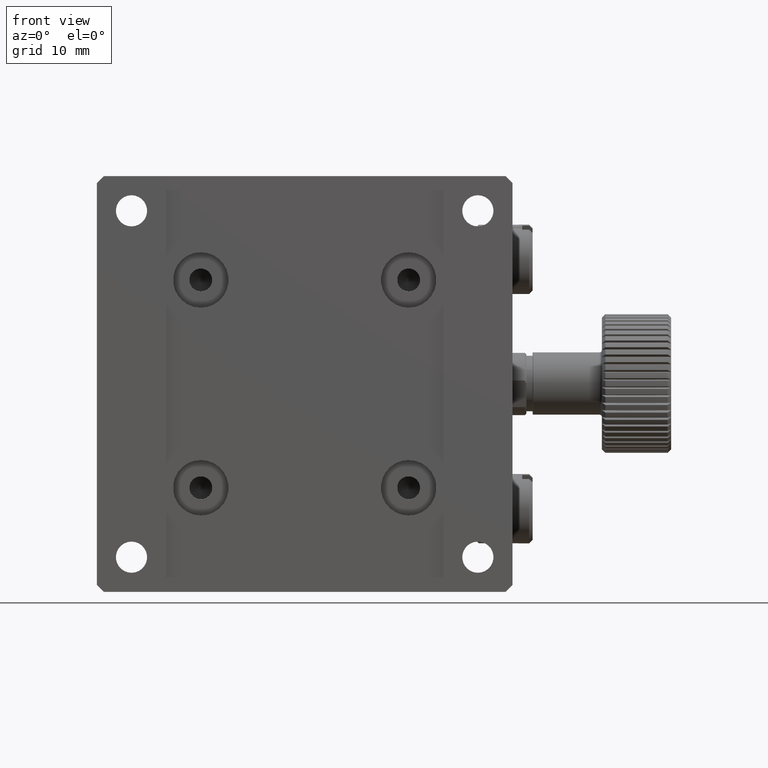
[diagram: clean part render]
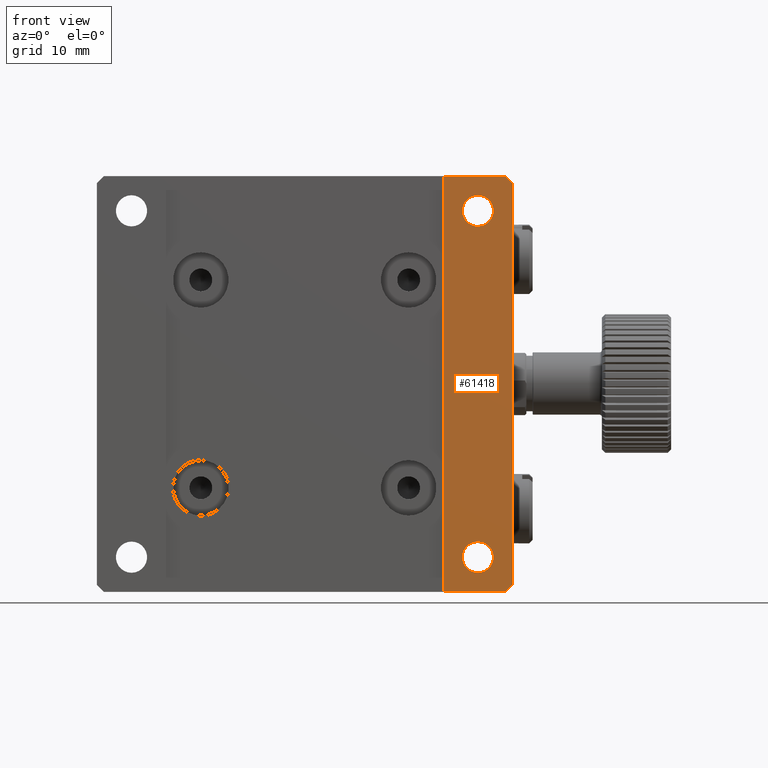
[diagram: same view with one face highlighted and labeled with its STEP entity id]
A machine part, front view. The second image highlights one B-rep face of the part: STEP entity #61418.
In plain terms, the highlighted planar face has unit normal (0, 1, 0).
Its self-contained STEP definition (entity closure, byte-faithful):
#5615 = ORIENTED_EDGE ( 'NONE', *, *, #96563, .T. ) ;
#7165 = DIRECTION ( 'NONE',  ( 1.000000000000000000, 0.000000000000000000, -0.000000000000000000 ) ) ;
#8901 = DIRECTION ( 'NONE',  ( -0.000000000000000000, -1.000000000000000000, -0.000000000000000000 ) ) ;
#11584 = LINE ( 'NONE', #35519, #37038 ) ;
#12710 = VERTEX_POINT ( 'NONE', #62638 ) ;
#13124 = LINE ( 'NONE', #67349, #98227 ) ;
#14609 = VECTOR ( 'NONE', #7165, 1000.000000000000000 ) ;
#15133 = EDGE_LOOP ( 'NONE', ( #73377 ) ) ;
#15480 = ORIENTED_EDGE ( 'NONE', *, *, #78116, .T. ) ;
#18010 = CIRCLE ( 'NONE', #97825, 2.250000000000001776 ) ;
#21343 = DIRECTION ( 'NONE',  ( 0.000000000000000000, 0.000000000000000000, 1.000000000000000000 ) ) ;
#21538 = AXIS2_PLACEMENT_3D ( 'NONE', #107268, #8901, #74648 ) ;
#21895 = ORIENTED_EDGE ( 'NONE', *, *, #64550, .F. ) ;
#23698 = CARTESIAN_POINT ( 'NONE',  ( 60.00000000000000000, 0.000000000000000000, 0.000000000000000000 ) ) ;
#28165 = LINE ( 'NONE', #85238, #55378 ) ;
#30381 = FACE_BOUND ( 'NONE', #15133, .T. ) ;
#33667 = DIRECTION ( 'NONE',  ( -0.7071067811865474617, 0.000000000000000000, -0.7071067811865474617 ) ) ;
#34249 = CARTESIAN_POINT ( 'NONE',  ( 55.00000000000001421, 0.000000000000000000, 7.250000000000000888 ) ) ;
#34993 = DIRECTION ( 'NONE',  ( -1.000000000000000000, 0.000000000000000000, -0.000000000000000000 ) ) ;
#35519 = CARTESIAN_POINT ( 'NONE',  ( 7.347880794884118356E-15, 0.000000000000000000, 60.00000000000000000 ) ) ;
#37038 = VECTOR ( 'NONE', #34993, 1000.000000000000000 ) ;
#39166 = VECTOR ( 'NONE', #49899, 999.9999999999998863 ) ;
#39423 = CARTESIAN_POINT ( 'NONE',  ( 60.00000000000000711, 0.000000000000000000, 0.9999999999999826805 ) ) ;
#39465 = EDGE_LOOP ( 'NONE', ( #90217, #42412, #65101, #15480, #21895, #5615 ) ) ;
#41283 = VERTEX_POINT ( 'NONE', #67038 ) ;
#42412 = ORIENTED_EDGE ( 'NONE', *, *, #100480, .T. ) ;
#45816 = CARTESIAN_POINT ( 'NONE',  ( 55.00000000000001421, 0.000000000000000000, 55.00000000000000000 ) ) ;
#46301 = AXIS2_PLACEMENT_3D ( 'NONE', #98784, #64060, #80366 ) ;
#47781 = CARTESIAN_POINT ( 'NONE',  ( 59.00000000000000711, 0.000000000000000000, 60.00000000000000000 ) ) ;
#49899 = DIRECTION ( 'NONE',  ( 0.7071067811865525687, 0.000000000000000000, -0.7071067811865425767 ) ) ;
#55283 = EDGE_CURVE ( 'NONE', #81825, #56103, #28165, .T. ) ;
#55378 = VECTOR ( 'NONE', #60234, 1000.000000000000000 ) ;
#55476 = EDGE_LOOP ( 'NONE', ( #103726 ) ) ;
#56103 = VERTEX_POINT ( 'NONE', #97656 ) ;
#58222 = CARTESIAN_POINT ( 'NONE',  ( 0.000000000000000000, 0.000000000000000000, 0.000000000000000000 ) ) ;
#58265 = VERTEX_POINT ( 'NONE', #39423 ) ;
#59930 = VECTOR ( 'NONE', #81839, 1000.000000000000000 ) ;
#60234 = DIRECTION ( 'NONE',  ( 0.000000000000000000, -0.000000000000000000, 1.000000000000000000 ) ) ;
#61373 = CIRCLE ( 'NONE', #21538, 2.250000000000001776 ) ;
#61418 = ADVANCED_FACE ( 'NONE', ( #104814, #30381, #63526 ), #96666, .F. ) ;
#62638 = CARTESIAN_POINT ( 'NONE',  ( 60.00000000000001421, -1.951563910473907981E-15, 59.00000000000000711 ) ) ;
#63526 = FACE_BOUND ( 'NONE', #55476, .T. ) ;
#64060 = DIRECTION ( 'NONE',  ( 0.000000000000000000, 1.000000000000000000, 0.000000000000000000 ) ) ;
#64550 = EDGE_CURVE ( 'NONE', #41283, #12710, #91198, .T. ) ;
#65101 = ORIENTED_EDGE ( 'NONE', *, *, #65505, .F. ) ;
#65505 = EDGE_CURVE ( 'NONE', #58265, #102393, #13124, .T. ) ;
#67038 = CARTESIAN_POINT ( 'NONE',  ( 59.00000000000000711, -2.602085213965210642E-15, 60.00000000000000000 ) ) ;
#67349 = CARTESIAN_POINT ( 'NONE',  ( 60.00000000000000000, 0.000000000000000000, 0.9999999999999800160 ) ) ;
#67382 = VERTEX_POINT ( 'NONE', #34249 ) ;
#67533 = CARTESIAN_POINT ( 'NONE',  ( 50.00000000000000000, 0.000000000000000000, 0.000000000000000000 ) ) ;
#73377 = ORIENTED_EDGE ( 'NONE', *, *, #98504, .F. ) ;
#74648 = DIRECTION ( 'NONE',  ( 0.000000000000000000, 0.000000000000000000, 1.000000000000000000 ) ) ;
#75588 = LINE ( 'NONE', #58222, #14609 ) ;
#78116 = EDGE_CURVE ( 'NONE', #58265, #12710, #107359, .T. ) ;
#80366 = DIRECTION ( 'NONE',  ( 0.000000000000000000, -0.000000000000000000, 1.000000000000000000 ) ) ;
#81825 = VERTEX_POINT ( 'NONE', #67533 ) ;
#81839 = DIRECTION ( 'NONE',  ( 1.156482317317871478E-16, 0.000000000000000000, 1.000000000000000000 ) ) ;
#85238 = CARTESIAN_POINT ( 'NONE',  ( 50.00000000000000000, 0.000000000000000000, 0.000000000000000000 ) ) ;
#89247 = DIRECTION ( 'NONE',  ( -0.000000000000000000, -1.000000000000000000, -0.000000000000000000 ) ) ;
#90217 = ORIENTED_EDGE ( 'NONE', *, *, #55283, .F. ) ;
#90784 = VERTEX_POINT ( 'NONE', #99974 ) ;
#91198 = LINE ( 'NONE', #47781, #39166 ) ;
#94262 = CARTESIAN_POINT ( 'NONE',  ( 59.00000000000001421, 0.000000000000000000, 8.131516293641283255E-16 ) ) ;
#96563 = EDGE_CURVE ( 'NONE', #41283, #56103, #11584, .T. ) ;
#96666 = PLANE ( 'NONE',  #46301 ) ;
#97656 = CARTESIAN_POINT ( 'NONE',  ( 50.00000000000000000, 0.000000000000000000, 60.00000000000000000 ) ) ;
#97825 = AXIS2_PLACEMENT_3D ( 'NONE', #45816, #89247, #21343 ) ;
#98227 = VECTOR ( 'NONE', #33667, 1000.000000000000114 ) ;
#98504 = EDGE_CURVE ( 'NONE', #67382, #67382, #61373, .T. ) ;
#98784 = CARTESIAN_POINT ( 'NONE',  ( 0.000000000000000000, 0.000000000000000000, 0.000000000000000000 ) ) ;
#99796 = EDGE_CURVE ( 'NONE', #90784, #90784, #18010, .T. ) ;
#99974 = CARTESIAN_POINT ( 'NONE',  ( 55.00000000000001421, 0.000000000000000000, 57.25000000000000000 ) ) ;
#100480 = EDGE_CURVE ( 'NONE', #81825, #102393, #75588, .T. ) ;
#102393 = VERTEX_POINT ( 'NONE', #94262 ) ;
#103726 = ORIENTED_EDGE ( 'NONE', *, *, #99796, .F. ) ;
#104814 = FACE_OUTER_BOUND ( 'NONE', #39465, .T. ) ;
#107268 = CARTESIAN_POINT ( 'NONE',  ( 55.00000000000001421, 0.000000000000000000, 4.999999999999999112 ) ) ;
#107359 = LINE ( 'NONE', #23698, #59930 ) ;